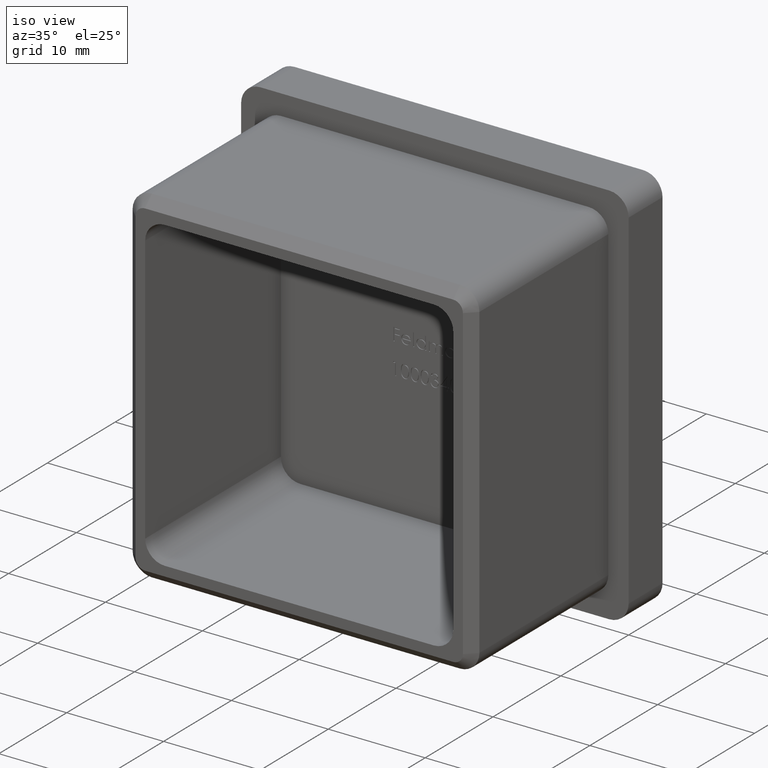
[diagram: clean part render]
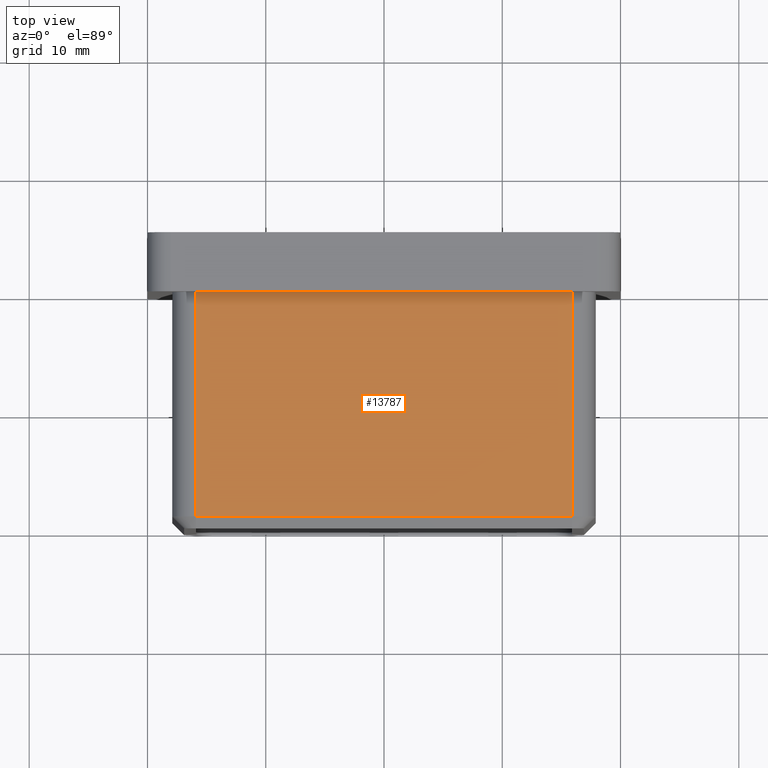
[diagram: tour spotlight — one face highlighted and labeled with its STEP entity id]
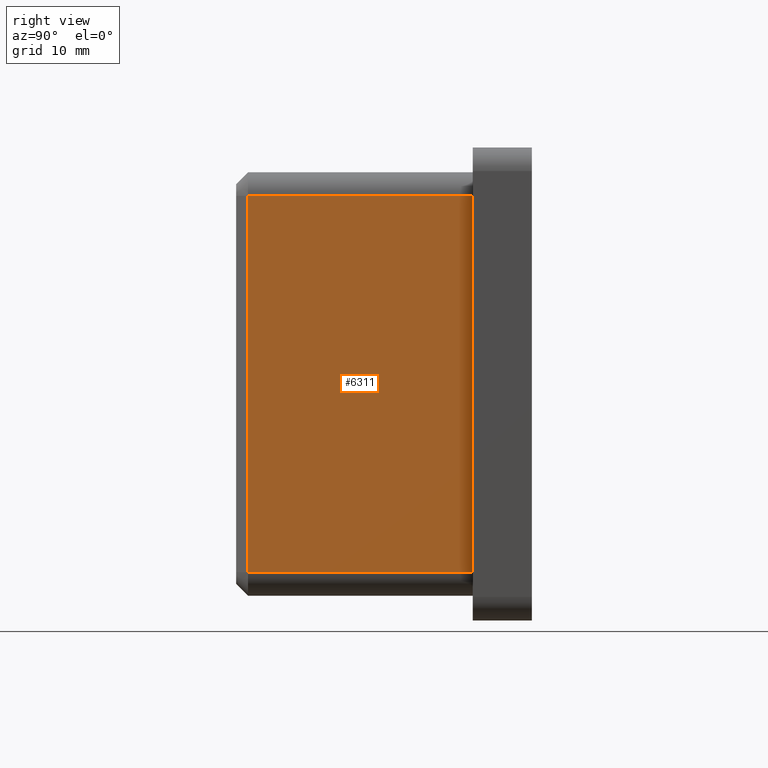
[diagram: tour spotlight — one face highlighted and labeled with its STEP entity id]
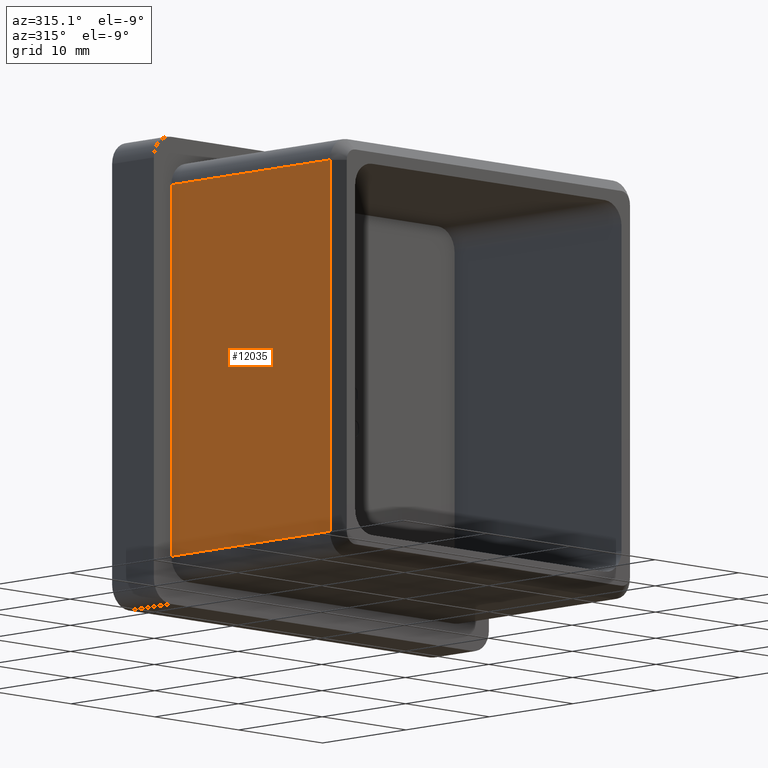
[diagram: tour spotlight — one face highlighted and labeled with its STEP entity id]
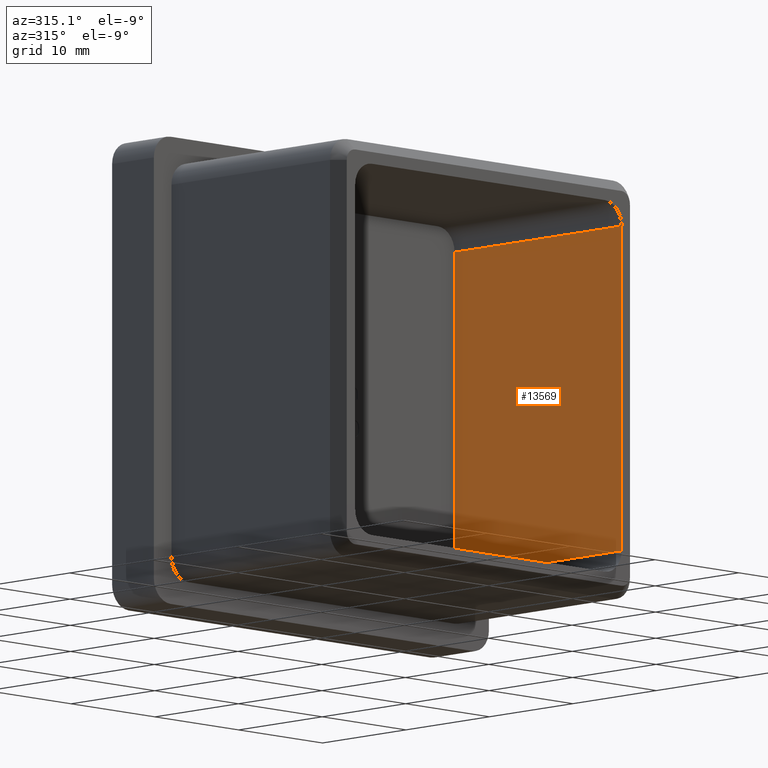
[diagram: tour spotlight — one face highlighted and labeled with its STEP entity id]
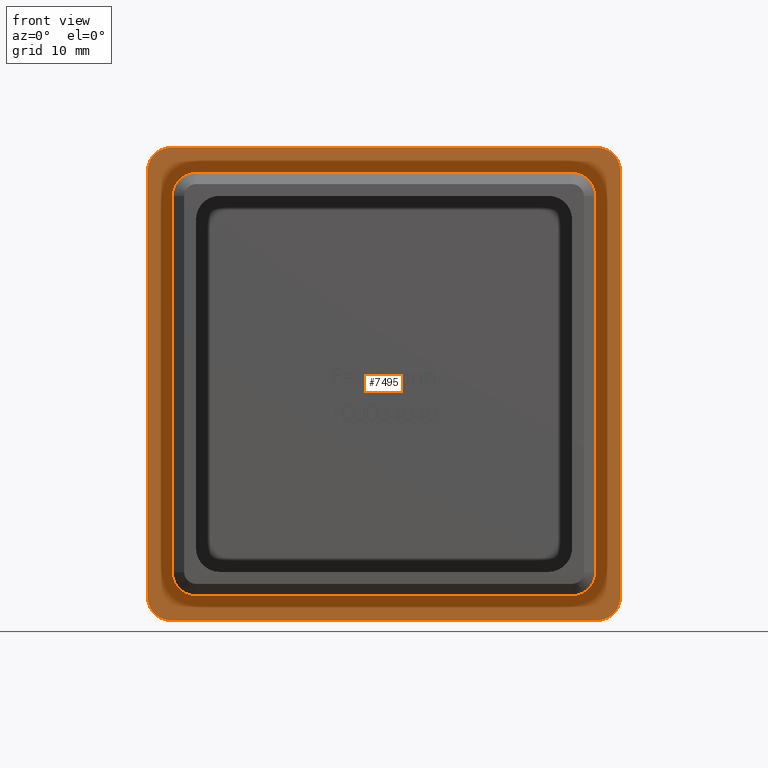
[diagram: tour spotlight — one face highlighted and labeled with its STEP entity id]
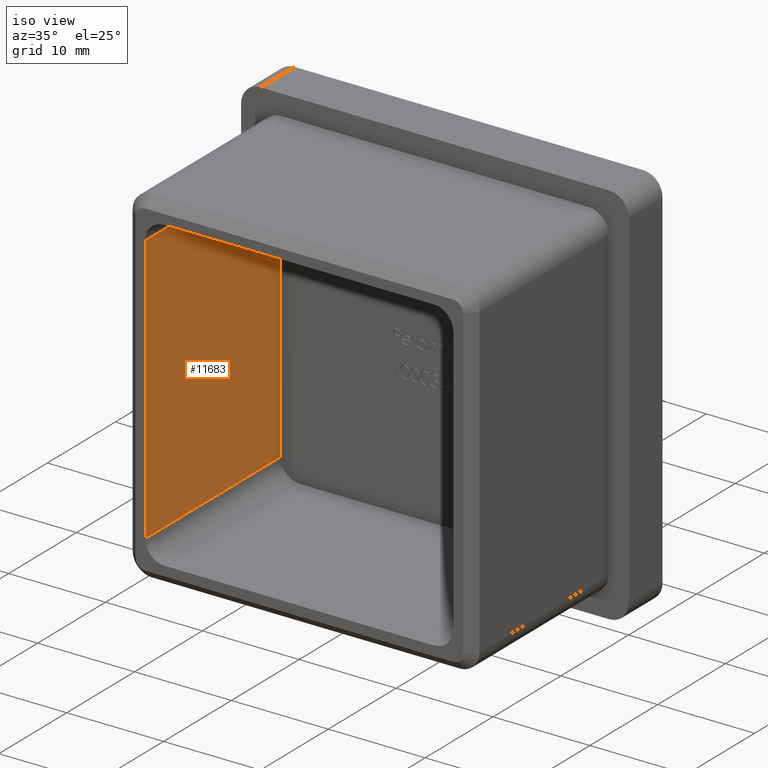
[diagram: tour spotlight — one face highlighted and labeled with its STEP entity id]
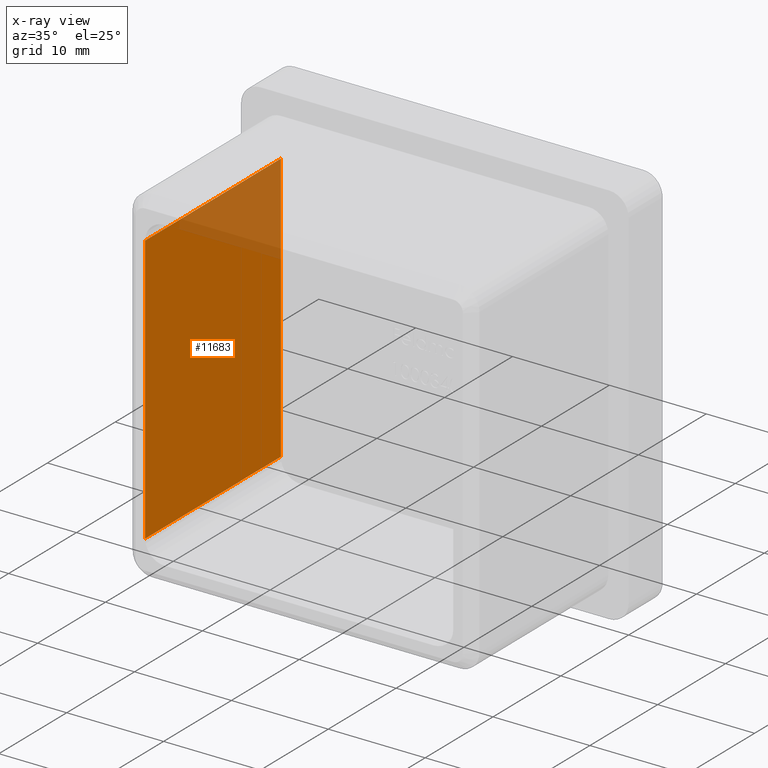
[diagram: x-ray of the same camera — body ghosted, this tour face saturated]
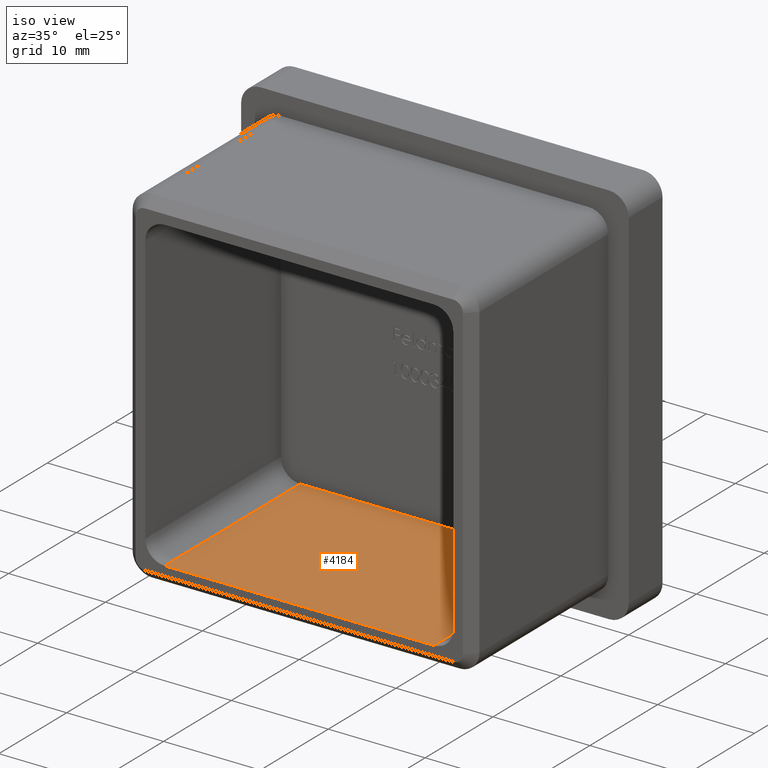
[diagram: tour spotlight — one face highlighted and labeled with its STEP entity id]
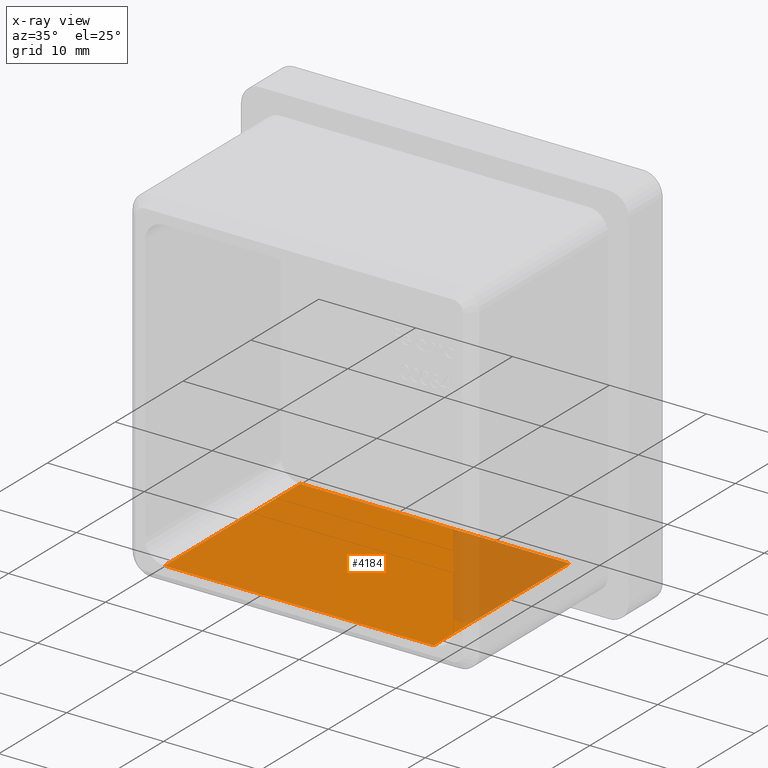
[diagram: x-ray of the same camera — body ghosted, this tour face saturated]
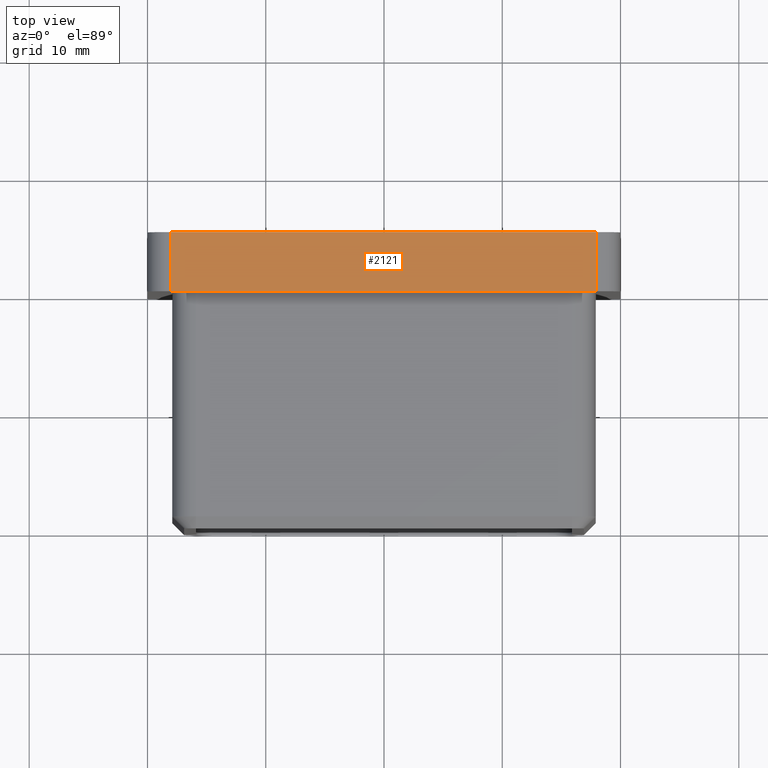
[diagram: tour spotlight — one face highlighted and labeled with its STEP entity id]
A machine part: a face-by-face anatomy tour. The part has 259 B-rep faces; the first image is the clean iso view, then the 8 largest visible faces are spotlighted one at a time (largest first), each with its STEP entity span.

Face 1 — top view, entity #13787. In plain terms, the highlighted planar face has unit normal (0, 0, -1).
Definition (entity closure, byte-faithful):
#278 = EDGE_LOOP ( 'NONE', ( #12720, #13172, #12821, #14351 ) ) ;
#1081 = VERTEX_POINT ( 'NONE', #6877 ) ;
#1082 = DIRECTION ( 'NONE',  ( 0.0000000000000000000, 0.0000000000000000000, -1.000000000000000000 ) ) ;
#1235 = CARTESIAN_POINT ( 'NONE',  ( 15.89999999999998400, 0.0000000000000000000, 17.89999999999999900 ) ) ;
#1703 = VECTOR ( 'NONE', #12383, 1000.000000000000000 ) ;
#1907 = DIRECTION ( 'NONE',  ( 0.0000000000000000000, 1.000000000000000000, 0.0000000000000000000 ) ) ;
#1947 = CARTESIAN_POINT ( 'NONE',  ( -15.89999999999999700, -20.00000000000000000, 17.89999999999999900 ) ) ;
#2086 = CARTESIAN_POINT ( 'NONE',  ( 15.89999999999998400, -18.99999999999998600, 17.89999999999999900 ) ) ;
#3651 = LINE ( 'NONE', #2086, #10489 ) ;
#3713 = EDGE_CURVE ( 'NONE', #10042, #13237, #9702, .T. ) ;
#4677 = LINE ( 'NONE', #1947, #1703 ) ;
#5025 = VECTOR ( 'NONE', #1907, 1000.000000000000000 ) ;
#5189 = CARTESIAN_POINT ( 'NONE',  ( -17.89999999999999900, 0.0000000000000000000, 17.89999999999999900 ) ) ;
#5533 = DIRECTION ( 'NONE',  ( 1.000000000000000000, 0.0000000000000000000, 0.0000000000000000000 ) ) ;
#6624 = EDGE_CURVE ( 'NONE', #1081, #10042, #14276, .T. ) ;
#6647 = EDGE_CURVE ( 'NONE', #13237, #13426, #4677, .T. ) ;
#6678 = DIRECTION ( 'NONE',  ( -1.000000000000000000, -0.0000000000000000000, -0.0000000000000000000 ) ) ;
#6877 = CARTESIAN_POINT ( 'NONE',  ( 15.89999999999999700, -18.99999999999998600, 17.89999999999999900 ) ) ;
#7542 = PLANE ( 'NONE',  #11648 ) ;
#7789 = CARTESIAN_POINT ( 'NONE',  ( -17.89999999999999900, -20.00000000000000000, 17.89999999999999900 ) ) ;
#7970 = CARTESIAN_POINT ( 'NONE',  ( -15.89999999999999700, 0.0000000000000000000, 17.89999999999999900 ) ) ;
#8910 = FACE_OUTER_BOUND ( 'NONE', #278, .T. ) ;
#8916 = DIRECTION ( 'NONE',  ( -1.000000000000000000, 0.0000000000000000000, -0.0000000000000000000 ) ) ;
#9702 = LINE ( 'NONE', #5189, #12671 ) ;
#10042 = VERTEX_POINT ( 'NONE', #1235 ) ;
#10489 = VECTOR ( 'NONE', #5533, 1000.000000000000000 ) ;
#11566 = CARTESIAN_POINT ( 'NONE',  ( -15.89999999999999700, -18.99999999999998600, 17.89999999999999900 ) ) ;
#11648 = AXIS2_PLACEMENT_3D ( 'NONE', #7789, #1082, #8916 ) ;
#12140 = CARTESIAN_POINT ( 'NONE',  ( 15.89999999999999700, -20.00000000000000000, 17.89999999999999900 ) ) ;
#12383 = DIRECTION ( 'NONE',  ( -0.0000000000000000000, -1.000000000000000000, -0.0000000000000000000 ) ) ;
#12671 = VECTOR ( 'NONE', #6678, 1000.000000000000000 ) ;
#12720 = ORIENTED_EDGE ( 'NONE', *, *, #6647, .T. ) ;
#12821 = ORIENTED_EDGE ( 'NONE', *, *, #6624, .T. ) ;
#13172 = ORIENTED_EDGE ( 'NONE', *, *, #13899, .T. ) ;
#13237 = VERTEX_POINT ( 'NONE', #7970 ) ;
#13426 = VERTEX_POINT ( 'NONE', #11566 ) ;
#13787 = ADVANCED_FACE ( 'NONE', ( #8910 ), #7542, .F. ) ;
#13899 = EDGE_CURVE ( 'NONE', #13426, #1081, #3651, .T. ) ;
#14276 = LINE ( 'NONE', #12140, #5025 ) ;
#14351 = ORIENTED_EDGE ( 'NONE', *, *, #3713, .T. ) ;

Face 2 — right view, entity #6311. In plain terms, the highlighted planar face has unit normal (-1, 0, -0).
Definition (entity closure, byte-faithful):
#3 = ORIENTED_EDGE ( 'NONE', *, *, #2335, .T. ) ;
#183 = DIRECTION ( 'NONE',  ( -0.0000000000000000000, 0.0000000000000000000, 1.000000000000000000 ) ) ;
#287 = DIRECTION ( 'NONE',  ( -0.0000000000000000000, -0.0000000000000000000, 1.000000000000000000 ) ) ;
#300 = EDGE_CURVE ( 'NONE', #13657, #5680, #11364, .T. ) ;
#335 = CARTESIAN_POINT ( 'NONE',  ( 17.89999999999999900, 0.0000000000000000000, 17.89999999999999900 ) ) ;
#1181 = DIRECTION ( 'NONE',  ( 0.0000000000000000000, 1.000000000000000000, 0.0000000000000000000 ) ) ;
#1197 = EDGE_CURVE ( 'NONE', #7612, #13657, #6884, .T. ) ;
#2312 = CARTESIAN_POINT ( 'NONE',  ( 17.89999999999999900, 0.0000000000000000000, -15.89999999999998400 ) ) ;
#2335 = EDGE_CURVE ( 'NONE', #5680, #2731, #14076, .T. ) ;
#2683 = LINE ( 'NONE', #335, #5313 ) ;
#2731 = VERTEX_POINT ( 'NONE', #2312 ) ;
#3453 = DIRECTION ( 'NONE',  ( -1.000000000000000000, 0.0000000000000000000, -0.0000000000000000000 ) ) ;
#3534 = DIRECTION ( 'NONE',  ( -0.0000000000000000000, -1.000000000000000000, -0.0000000000000000000 ) ) ;
#4021 = EDGE_CURVE ( 'NONE', #2731, #7612, #2683, .T. ) ;
#4549 = CARTESIAN_POINT ( 'NONE',  ( 17.89999999999999900, -20.00000000000000000, -15.89999999999999700 ) ) ;
#5253 = ORIENTED_EDGE ( 'NONE', *, *, #300, .T. ) ;
#5313 = VECTOR ( 'NONE', #287, 1000.000000000000000 ) ;
#5680 = VERTEX_POINT ( 'NONE', #13025 ) ;
#5906 = PLANE ( 'NONE',  #11083 ) ;
#5983 = CARTESIAN_POINT ( 'NONE',  ( 17.89999999999999900, -20.00000000000000000, 15.89999999999999700 ) ) ;
#6311 = ADVANCED_FACE ( 'NONE', ( #12963 ), #5906, .F. ) ;
#6884 = LINE ( 'NONE', #5983, #7404 ) ;
#6891 = CARTESIAN_POINT ( 'NONE',  ( 17.89999999999999900, -20.00000000000000000, 17.89999999999999900 ) ) ;
#7404 = VECTOR ( 'NONE', #3534, 1000.000000000000000 ) ;
#7612 = VERTEX_POINT ( 'NONE', #12650 ) ;
#8386 = VECTOR ( 'NONE', #12271, 1000.000000000000000 ) ;
#8709 = EDGE_LOOP ( 'NONE', ( #9338, #5253, #3, #13088 ) ) ;
#8723 = CARTESIAN_POINT ( 'NONE',  ( 17.89999999999999900, -18.99999999999998600, 15.89999999999999700 ) ) ;
#8914 = CARTESIAN_POINT ( 'NONE',  ( 17.89999999999999900, -18.99999999999998600, -15.89999999999998400 ) ) ;
#9338 = ORIENTED_EDGE ( 'NONE', *, *, #1197, .T. ) ;
#9900 = VECTOR ( 'NONE', #1181, 1000.000000000000000 ) ;
#11083 = AXIS2_PLACEMENT_3D ( 'NONE', #6891, #3453, #183 ) ;
#11364 = LINE ( 'NONE', #8914, #8386 ) ;
#12271 = DIRECTION ( 'NONE',  ( 0.0000000000000000000, 0.0000000000000000000, -1.000000000000000000 ) ) ;
#12650 = CARTESIAN_POINT ( 'NONE',  ( 17.89999999999999900, 0.0000000000000000000, 15.89999999999999700 ) ) ;
#12963 = FACE_OUTER_BOUND ( 'NONE', #8709, .T. ) ;
#13025 = CARTESIAN_POINT ( 'NONE',  ( 17.89999999999999900, -18.99999999999998600, -15.89999999999999700 ) ) ;
#13088 = ORIENTED_EDGE ( 'NONE', *, *, #4021, .T. ) ;
#13657 = VERTEX_POINT ( 'NONE', #8723 ) ;
#14076 = LINE ( 'NONE', #4549, #9900 ) ;

Face 3 — auxiliary view, entity #12035. In plain terms, the highlighted planar face has unit normal (1, 0, 0).
Definition (entity closure, byte-faithful):
#126 = PLANE ( 'NONE',  #4966 ) ;
#634 = EDGE_CURVE ( 'NONE', #5149, #2259, #7764, .T. ) ;
#1969 = LINE ( 'NONE', #11617, #13522 ) ;
#2259 = VERTEX_POINT ( 'NONE', #9642 ) ;
#2912 = EDGE_CURVE ( 'NONE', #4857, #10256, #9887, .T. ) ;
#3251 = VECTOR ( 'NONE', #5594, 1000.000000000000000 ) ;
#3583 = ORIENTED_EDGE ( 'NONE', *, *, #634, .T. ) ;
#3675 = CARTESIAN_POINT ( 'NONE',  ( -17.89999999999999900, -18.99999999999998600, -15.89999999999999700 ) ) ;
#4367 = CARTESIAN_POINT ( 'NONE',  ( -17.89999999999999900, -20.00000000000000000, -15.89999999999999700 ) ) ;
#4556 = EDGE_CURVE ( 'NONE', #2259, #4857, #1969, .T. ) ;
#4857 = VERTEX_POINT ( 'NONE', #11037 ) ;
#4900 = DIRECTION ( 'NONE',  ( -0.0000000000000000000, 1.000000000000000000, 0.0000000000000000000 ) ) ;
#4966 = AXIS2_PLACEMENT_3D ( 'NONE', #10249, #7957, #5848 ) ;
#4981 = VECTOR ( 'NONE', #9518, 1000.000000000000000 ) ;
#5149 = VERTEX_POINT ( 'NONE', #3675 ) ;
#5240 = EDGE_LOOP ( 'NONE', ( #7908, #3583, #9339, #9733 ) ) ;
#5594 = DIRECTION ( 'NONE',  ( -0.0000000000000000000, -1.000000000000000000, -0.0000000000000000000 ) ) ;
#5848 = DIRECTION ( 'NONE',  ( 0.0000000000000000000, 0.0000000000000000000, -1.000000000000000000 ) ) ;
#7109 = FACE_OUTER_BOUND ( 'NONE', #5240, .T. ) ;
#7764 = LINE ( 'NONE', #10410, #11606 ) ;
#7908 = ORIENTED_EDGE ( 'NONE', *, *, #11409, .T. ) ;
#7957 = DIRECTION ( 'NONE',  ( 1.000000000000000000, 0.0000000000000000000, 0.0000000000000000000 ) ) ;
#8409 = CARTESIAN_POINT ( 'NONE',  ( -17.89999999999999900, 0.0000000000000000000, 17.89999999999999900 ) ) ;
#8426 = CARTESIAN_POINT ( 'NONE',  ( -17.89999999999999900, 0.0000000000000000000, -15.89999999999998400 ) ) ;
#9339 = ORIENTED_EDGE ( 'NONE', *, *, #4556, .T. ) ;
#9383 = LINE ( 'NONE', #4367, #3251 ) ;
#9431 = DIRECTION ( 'NONE',  ( 0.0000000000000000000, 0.0000000000000000000, 1.000000000000000000 ) ) ;
#9518 = DIRECTION ( 'NONE',  ( 0.0000000000000000000, -0.0000000000000000000, -1.000000000000000000 ) ) ;
#9642 = CARTESIAN_POINT ( 'NONE',  ( -17.89999999999999900, -18.99999999999998600, 15.89999999999999700 ) ) ;
#9733 = ORIENTED_EDGE ( 'NONE', *, *, #2912, .T. ) ;
#9887 = LINE ( 'NONE', #8409, #4981 ) ;
#10249 = CARTESIAN_POINT ( 'NONE',  ( -17.89999999999999900, -20.00000000000000000, 17.89999999999999900 ) ) ;
#10256 = VERTEX_POINT ( 'NONE', #8426 ) ;
#10410 = CARTESIAN_POINT ( 'NONE',  ( -17.89999999999999900, -18.99999999999998600, 15.89999999999999700 ) ) ;
#11037 = CARTESIAN_POINT ( 'NONE',  ( -17.89999999999999900, 0.0000000000000000000, 15.89999999999999700 ) ) ;
#11409 = EDGE_CURVE ( 'NONE', #10256, #5149, #9383, .T. ) ;
#11606 = VECTOR ( 'NONE', #9431, 1000.000000000000000 ) ;
#11617 = CARTESIAN_POINT ( 'NONE',  ( -17.89999999999999900, -20.00000000000000000, 15.89999999999999700 ) ) ;
#12035 = ADVANCED_FACE ( 'NONE', ( #7109 ), #126, .F. ) ;
#13522 = VECTOR ( 'NONE', #4900, 1000.000000000000000 ) ;

Face 4 — auxiliary view, entity #13569. In plain terms, the highlighted planar face has unit normal (-1, 0, 0).
Definition (entity closure, byte-faithful):
#100 = VECTOR ( 'NONE', #11257, 1000.000000000000000 ) ;
#470 = VERTEX_POINT ( 'NONE', #628 ) ;
#628 = CARTESIAN_POINT ( 'NONE',  ( 15.89999999999999700, -20.00000000000000000, -13.89999999999999900 ) ) ;
#652 = DIRECTION ( 'NONE',  ( -1.000000000000000000, 0.0000000000000000000, 1.091021054073463500E-016 ) ) ;
#1345 = LINE ( 'NONE', #5461, #4482 ) ;
#1497 = CARTESIAN_POINT ( 'NONE',  ( 15.90000000000000000, 0.0000000000000000000, 13.90000000000000000 ) ) ;
#1547 = FACE_OUTER_BOUND ( 'NONE', #13655, .T. ) ;
#1639 = CARTESIAN_POINT ( 'NONE',  ( 15.89999999999999700, -20.00000000000000000, -13.90000000000000000 ) ) ;
#1672 = VECTOR ( 'NONE', #1870, 1000.000000000000000 ) ;
#1705 = EDGE_CURVE ( 'NONE', #13284, #470, #11085, .T. ) ;
#1833 = ORIENTED_EDGE ( 'NONE', *, *, #1705, .T. ) ;
#1870 = DIRECTION ( 'NONE',  ( 1.091021054073463500E-016, -0.0000000000000000000, 1.000000000000000000 ) ) ;
#1922 = EDGE_CURVE ( 'NONE', #13284, #14282, #9555, .T. ) ;
#2117 = VECTOR ( 'NONE', #6158, 1000.000000000000000 ) ;
#2362 = CARTESIAN_POINT ( 'NONE',  ( 15.89999999999999700, 0.0000000000000000000, -13.89999999999999900 ) ) ;
#2652 = CARTESIAN_POINT ( 'NONE',  ( 15.90000000000000000, 0.0000000000000000000, 13.90000000000000000 ) ) ;
#2952 = EDGE_CURVE ( 'NONE', #13608, #14282, #10610, .T. ) ;
#3069 = CARTESIAN_POINT ( 'NONE',  ( 15.90000000000000000, -20.00000000000000000, 13.90000000000000000 ) ) ;
#3349 = DIRECTION ( 'NONE',  ( 1.091021054073463500E-016, -0.0000000000000000000, 1.000000000000000000 ) ) ;
#4482 = VECTOR ( 'NONE', #3349, 1000.000000000000000 ) ;
#5137 = DIRECTION ( 'NONE',  ( 1.091021054073463500E-016, 0.0000000000000000000, 1.000000000000000000 ) ) ;
#5151 = CARTESIAN_POINT ( 'NONE',  ( 15.90000000000000000, 0.0000000000000000000, 15.90000000000000000 ) ) ;
#5461 = CARTESIAN_POINT ( 'NONE',  ( 15.90000000000000000, -20.00000000000000000, 15.90000000000000000 ) ) ;
#5804 = ORIENTED_EDGE ( 'NONE', *, *, #11283, .T. ) ;
#6158 = DIRECTION ( 'NONE',  ( -0.0000000000000000000, -1.000000000000000000, -0.0000000000000000000 ) ) ;
#9537 = ORIENTED_EDGE ( 'NONE', *, *, #2952, .T. ) ;
#9555 = LINE ( 'NONE', #5151, #1672 ) ;
#10610 = LINE ( 'NONE', #2652, #100 ) ;
#11085 = LINE ( 'NONE', #1639, #2117 ) ;
#11257 = DIRECTION ( 'NONE',  ( 0.0000000000000000000, 1.000000000000000000, 0.0000000000000000000 ) ) ;
#11283 = EDGE_CURVE ( 'NONE', #470, #13608, #1345, .T. ) ;
#11320 = ORIENTED_EDGE ( 'NONE', *, *, #1922, .F. ) ;
#11800 = CARTESIAN_POINT ( 'NONE',  ( 15.90000000000000000, -20.00000000000000000, 15.90000000000000000 ) ) ;
#11847 = PLANE ( 'NONE',  #13594 ) ;
#13284 = VERTEX_POINT ( 'NONE', #2362 ) ;
#13569 = ADVANCED_FACE ( 'NONE', ( #1547 ), #11847, .T. ) ;
#13594 = AXIS2_PLACEMENT_3D ( 'NONE', #11800, #652, #5137 ) ;
#13608 = VERTEX_POINT ( 'NONE', #3069 ) ;
#13655 = EDGE_LOOP ( 'NONE', ( #11320, #1833, #5804, #9537 ) ) ;
#14282 = VERTEX_POINT ( 'NONE', #1497 ) ;

Face 5 — front view, entity #7495. In plain terms, the highlighted planar face has unit normal (0, 1, 0).
Definition (entity closure, byte-faithful):
#213 = DIRECTION ( 'NONE',  ( -0.0000000000000000000, -1.000000000000000000, -0.0000000000000000000 ) ) ;
#258 = CARTESIAN_POINT ( 'NONE',  ( -19.99999999999999300, 0.0000000000000000000, 20.00000000000000000 ) ) ;
#287 = DIRECTION ( 'NONE',  ( -0.0000000000000000000, -0.0000000000000000000, 1.000000000000000000 ) ) ;
#335 = CARTESIAN_POINT ( 'NONE',  ( 17.89999999999999900, 0.0000000000000000000, 17.89999999999999900 ) ) ;
#433 = CARTESIAN_POINT ( 'NONE',  ( 0.0000000000000000000, 0.0000000000000000000, 0.0000000000000000000 ) ) ;
#530 = CARTESIAN_POINT ( 'NONE',  ( 15.89999999999998400, 0.0000000000000000000, -17.89999999999999900 ) ) ;
#534 = VERTEX_POINT ( 'NONE', #11830 ) ;
#567 = VECTOR ( 'NONE', #4516, 1000.000000000000000 ) ;
#591 = CARTESIAN_POINT ( 'NONE',  ( 15.89999999999999700, 0.0000000000000000000, -15.89999999999999700 ) ) ;
#661 = ORIENTED_EDGE ( 'NONE', *, *, #4021, .F. ) ;
#707 = CARTESIAN_POINT ( 'NONE',  ( -15.89999999999999700, 0.0000000000000000000, -17.89999999999999900 ) ) ;
#915 = DIRECTION ( 'NONE',  ( 0.0000000000000000000, 1.000000000000000000, 0.0000000000000000000 ) ) ;
#996 = EDGE_LOOP ( 'NONE', ( #4811, #7583, #3006, #11451, #9241, #5613, #5521, #12932 ) ) ;
#1066 = CARTESIAN_POINT ( 'NONE',  ( -15.89999999999999700, 0.0000000000000000000, 15.89999999999999700 ) ) ;
#1084 = EDGE_CURVE ( 'NONE', #2330, #2271, #8798, .T. ) ;
#1174 = EDGE_CURVE ( 'NONE', #2330, #9717, #12468, .T. ) ;
#1199 = EDGE_CURVE ( 'NONE', #534, #9717, #14188, .T. ) ;
#1200 = EDGE_LOOP ( 'NONE', ( #661, #1737, #13458, #10148, #6559, #4944, #3926, #2053 ) ) ;
#1235 = CARTESIAN_POINT ( 'NONE',  ( 15.89999999999998400, 0.0000000000000000000, 17.89999999999999900 ) ) ;
#1388 = DIRECTION ( 'NONE',  ( 1.000000000000000000, 0.0000000000000000000, 0.0000000000000000000 ) ) ;
#1430 = CARTESIAN_POINT ( 'NONE',  ( -17.99999999999999600, 0.0000000000000000000, 18.00000000000000400 ) ) ;
#1458 = CARTESIAN_POINT ( 'NONE',  ( -19.99999999999999300, 0.0000000000000000000, 18.00000000000000700 ) ) ;
#1508 = CIRCLE ( 'NONE', #2986, 2.000000000000001800 ) ;
#1552 = CARTESIAN_POINT ( 'NONE',  ( -18.00000000000000400, 0.0000000000000000000, -20.00000000000000000 ) ) ;
#1562 = DIRECTION ( 'NONE',  ( 0.0000000000000000000, 1.000000000000000000, 0.0000000000000000000 ) ) ;
#1637 = CARTESIAN_POINT ( 'NONE',  ( 18.00000000000001400, 0.0000000000000000000, 20.00000000000000000 ) ) ;
#1737 = ORIENTED_EDGE ( 'NONE', *, *, #3826, .T. ) ;
#1738 = DIRECTION ( 'NONE',  ( 1.000000000000000000, 0.0000000000000000000, 0.0000000000000000000 ) ) ;
#1753 = VERTEX_POINT ( 'NONE', #1552 ) ;
#2017 = CIRCLE ( 'NONE', #9396, 2.000000000000001800 ) ;
#2037 = DIRECTION ( 'NONE',  ( 1.734723475976807100E-016, 0.0000000000000000000, 1.000000000000000000 ) ) ;
#2053 = ORIENTED_EDGE ( 'NONE', *, *, #11471, .T. ) ;
#2067 = AXIS2_PLACEMENT_3D ( 'NONE', #10632, #14058, #12931 ) ;
#2271 = VERTEX_POINT ( 'NONE', #9783 ) ;
#2282 = EDGE_CURVE ( 'NONE', #3550, #6066, #7114, .T. ) ;
#2312 = CARTESIAN_POINT ( 'NONE',  ( 17.89999999999999900, 0.0000000000000000000, -15.89999999999998400 ) ) ;
#2330 = VERTEX_POINT ( 'NONE', #4258 ) ;
#2533 = VECTOR ( 'NONE', #2037, 1000.000000000000000 ) ;
#2647 = EDGE_CURVE ( 'NONE', #4857, #13237, #7284, .T. ) ;
#2683 = LINE ( 'NONE', #335, #5313 ) ;
#2715 = DIRECTION ( 'NONE',  ( 0.0000000000000000000, -0.0000000000000000000, 1.000000000000000000 ) ) ;
#2731 = VERTEX_POINT ( 'NONE', #2312 ) ;
#2827 = LINE ( 'NONE', #11588, #7575 ) ;
#2870 = CIRCLE ( 'NONE', #12636, 2.000000000000000000 ) ;
#2912 = EDGE_CURVE ( 'NONE', #4857, #10256, #9887, .T. ) ;
#2986 = AXIS2_PLACEMENT_3D ( 'NONE', #1430, #13879, #4936 ) ;
#3006 = ORIENTED_EDGE ( 'NONE', *, *, #1084, .F. ) ;
#3032 = CIRCLE ( 'NONE', #6375, 2.000000000000000000 ) ;
#3077 = FACE_OUTER_BOUND ( 'NONE', #996, .T. ) ;
#3289 = EDGE_CURVE ( 'NONE', #8749, #10256, #2870, .T. ) ;
#3486 = DIRECTION ( 'NONE',  ( 0.0000000000000000000, 1.000000000000000000, 0.0000000000000000000 ) ) ;
#3550 = VERTEX_POINT ( 'NONE', #5047 ) ;
#3713 = EDGE_CURVE ( 'NONE', #10042, #13237, #9702, .T. ) ;
#3826 = EDGE_CURVE ( 'NONE', #2731, #4071, #3032, .T. ) ;
#3926 = ORIENTED_EDGE ( 'NONE', *, *, #3713, .F. ) ;
#4021 = EDGE_CURVE ( 'NONE', #2731, #7612, #2683, .T. ) ;
#4071 = VERTEX_POINT ( 'NONE', #530 ) ;
#4258 = CARTESIAN_POINT ( 'NONE',  ( 20.00000000000000700, 0.0000000000000000000, 18.00000000000000700 ) ) ;
#4516 = DIRECTION ( 'NONE',  ( -1.734723475976807100E-016, -0.0000000000000000000, -1.000000000000000000 ) ) ;
#4608 = DIRECTION ( 'NONE',  ( 0.0000000000000000000, 0.0000000000000000000, 1.000000000000000000 ) ) ;
#4811 = ORIENTED_EDGE ( 'NONE', *, *, #6839, .F. ) ;
#4857 = VERTEX_POINT ( 'NONE', #11037 ) ;
#4936 = DIRECTION ( 'NONE',  ( 0.0000000000000000000, 0.0000000000000000000, 1.000000000000000000 ) ) ;
#4944 = ORIENTED_EDGE ( 'NONE', *, *, #2647, .T. ) ;
#4981 = VECTOR ( 'NONE', #9518, 1000.000000000000000 ) ;
#5017 = AXIS2_PLACEMENT_3D ( 'NONE', #8095, #213, #12573 ) ;
#5047 = CARTESIAN_POINT ( 'NONE',  ( -20.00000000000000000, 0.0000000000000000000, -18.00000000000000400 ) ) ;
#5189 = CARTESIAN_POINT ( 'NONE',  ( -17.89999999999999900, 0.0000000000000000000, 17.89999999999999900 ) ) ;
#5313 = VECTOR ( 'NONE', #287, 1000.000000000000000 ) ;
#5449 = AXIS2_PLACEMENT_3D ( 'NONE', #433, #1562, #2715 ) ;
#5521 = ORIENTED_EDGE ( 'NONE', *, *, #2282, .F. ) ;
#5613 = ORIENTED_EDGE ( 'NONE', *, *, #11641, .T. ) ;
#5690 = CARTESIAN_POINT ( 'NONE',  ( 20.00000000000000000, 0.0000000000000000000, -20.00000000000000000 ) ) ;
#5839 = CARTESIAN_POINT ( 'NONE',  ( -20.00000000000000000, 0.0000000000000000000, -20.00000000000000000 ) ) ;
#6066 = VERTEX_POINT ( 'NONE', #1458 ) ;
#6151 = EDGE_CURVE ( 'NONE', #8749, #4071, #2827, .T. ) ;
#6181 = VECTOR ( 'NONE', #1388, 1000.000000000000000 ) ;
#6375 = AXIS2_PLACEMENT_3D ( 'NONE', #591, #11838, #12936 ) ;
#6559 = ORIENTED_EDGE ( 'NONE', *, *, #2912, .F. ) ;
#6678 = DIRECTION ( 'NONE',  ( -1.000000000000000000, -0.0000000000000000000, -0.0000000000000000000 ) ) ;
#6839 = EDGE_CURVE ( 'NONE', #10675, #1753, #13945, .T. ) ;
#7114 = LINE ( 'NONE', #14252, #2533 ) ;
#7284 = CIRCLE ( 'NONE', #7889, 2.000000000000001800 ) ;
#7320 = CIRCLE ( 'NONE', #2067, 2.000000000000001800 ) ;
#7495 = ADVANCED_FACE ( 'NONE', ( #3077, #7837 ), #8368, .F. ) ;
#7575 = VECTOR ( 'NONE', #1738, 1000.000000000000000 ) ;
#7583 = ORIENTED_EDGE ( 'NONE', *, *, #10571, .T. ) ;
#7612 = VERTEX_POINT ( 'NONE', #12650 ) ;
#7837 = FACE_BOUND ( 'NONE', #1200, .T. ) ;
#7889 = AXIS2_PLACEMENT_3D ( 'NONE', #1066, #13418, #7973 ) ;
#7947 = CARTESIAN_POINT ( 'NONE',  ( 15.89999999999999700, 0.0000000000000000000, 15.89999999999999700 ) ) ;
#7970 = CARTESIAN_POINT ( 'NONE',  ( -15.89999999999999700, 0.0000000000000000000, 17.89999999999999900 ) ) ;
#7973 = DIRECTION ( 'NONE',  ( 0.0000000000000000000, 0.0000000000000000000, 1.000000000000000000 ) ) ;
#8095 = CARTESIAN_POINT ( 'NONE',  ( 18.00000000000001100, 0.0000000000000000000, 18.00000000000000700 ) ) ;
#8216 = DIRECTION ( 'NONE',  ( 0.0000000000000000000, 0.0000000000000000000, 1.000000000000000000 ) ) ;
#8368 = PLANE ( 'NONE',  #5449 ) ;
#8409 = CARTESIAN_POINT ( 'NONE',  ( -17.89999999999999900, 0.0000000000000000000, 17.89999999999999900 ) ) ;
#8426 = CARTESIAN_POINT ( 'NONE',  ( -17.89999999999999900, 0.0000000000000000000, -15.89999999999998400 ) ) ;
#8749 = VERTEX_POINT ( 'NONE', #707 ) ;
#8798 = LINE ( 'NONE', #5690, #567 ) ;
#8838 = DIRECTION ( 'NONE',  ( 0.0000000000000000000, 0.0000000000000000000, 1.000000000000000000 ) ) ;
#9241 = ORIENTED_EDGE ( 'NONE', *, *, #1199, .F. ) ;
#9274 = CARTESIAN_POINT ( 'NONE',  ( 18.00000000000000700, 0.0000000000000000000, -18.00000000000000400 ) ) ;
#9396 = AXIS2_PLACEMENT_3D ( 'NONE', #9274, #13798, #8216 ) ;
#9518 = DIRECTION ( 'NONE',  ( 0.0000000000000000000, -0.0000000000000000000, -1.000000000000000000 ) ) ;
#9605 = CARTESIAN_POINT ( 'NONE',  ( 18.00000000000000700, 0.0000000000000000000, -20.00000000000000000 ) ) ;
#9702 = LINE ( 'NONE', #5189, #12671 ) ;
#9717 = VERTEX_POINT ( 'NONE', #1637 ) ;
#9783 = CARTESIAN_POINT ( 'NONE',  ( 20.00000000000000000, 0.0000000000000000000, -18.00000000000000400 ) ) ;
#9887 = LINE ( 'NONE', #8409, #4981 ) ;
#10042 = VERTEX_POINT ( 'NONE', #1235 ) ;
#10148 = ORIENTED_EDGE ( 'NONE', *, *, #3289, .T. ) ;
#10168 = EDGE_CURVE ( 'NONE', #3550, #1753, #7320, .T. ) ;
#10256 = VERTEX_POINT ( 'NONE', #8426 ) ;
#10571 = EDGE_CURVE ( 'NONE', #10675, #2271, #2017, .T. ) ;
#10632 = CARTESIAN_POINT ( 'NONE',  ( -18.00000000000000400, 0.0000000000000000000, -18.00000000000000400 ) ) ;
#10675 = VERTEX_POINT ( 'NONE', #9605 ) ;
#10800 = CIRCLE ( 'NONE', #10994, 2.000000000000001800 ) ;
#10994 = AXIS2_PLACEMENT_3D ( 'NONE', #7947, #3486, #4608 ) ;
#11001 = VECTOR ( 'NONE', #12572, 1000.000000000000000 ) ;
#11037 = CARTESIAN_POINT ( 'NONE',  ( -17.89999999999999900, 0.0000000000000000000, 15.89999999999999700 ) ) ;
#11451 = ORIENTED_EDGE ( 'NONE', *, *, #1174, .T. ) ;
#11471 = EDGE_CURVE ( 'NONE', #10042, #7612, #10800, .T. ) ;
#11588 = CARTESIAN_POINT ( 'NONE',  ( -17.89999999999999900, -0.0000000000000000000, -17.89999999999999900 ) ) ;
#11641 = EDGE_CURVE ( 'NONE', #534, #6066, #1508, .T. ) ;
#11830 = CARTESIAN_POINT ( 'NONE',  ( -17.99999999999999600, 0.0000000000000000000, 20.00000000000000000 ) ) ;
#11838 = DIRECTION ( 'NONE',  ( 0.0000000000000000000, 1.000000000000000000, 0.0000000000000000000 ) ) ;
#12468 = CIRCLE ( 'NONE', #5017, 1.999999999999998200 ) ;
#12572 = DIRECTION ( 'NONE',  ( -1.000000000000000000, -0.0000000000000000000, -0.0000000000000000000 ) ) ;
#12573 = DIRECTION ( 'NONE',  ( 0.0000000000000000000, 0.0000000000000000000, 1.000000000000000000 ) ) ;
#12636 = AXIS2_PLACEMENT_3D ( 'NONE', #13162, #915, #8838 ) ;
#12650 = CARTESIAN_POINT ( 'NONE',  ( 17.89999999999999900, 0.0000000000000000000, 15.89999999999999700 ) ) ;
#12671 = VECTOR ( 'NONE', #6678, 1000.000000000000000 ) ;
#12931 = DIRECTION ( 'NONE',  ( 0.0000000000000000000, 0.0000000000000000000, 1.000000000000000000 ) ) ;
#12932 = ORIENTED_EDGE ( 'NONE', *, *, #10168, .T. ) ;
#12936 = DIRECTION ( 'NONE',  ( 0.0000000000000000000, 0.0000000000000000000, 1.000000000000000000 ) ) ;
#13162 = CARTESIAN_POINT ( 'NONE',  ( -15.89999999999999700, 0.0000000000000000000, -15.89999999999999700 ) ) ;
#13237 = VERTEX_POINT ( 'NONE', #7970 ) ;
#13418 = DIRECTION ( 'NONE',  ( 0.0000000000000000000, 1.000000000000000000, 0.0000000000000000000 ) ) ;
#13458 = ORIENTED_EDGE ( 'NONE', *, *, #6151, .F. ) ;
#13798 = DIRECTION ( 'NONE',  ( -0.0000000000000000000, -1.000000000000000000, -0.0000000000000000000 ) ) ;
#13879 = DIRECTION ( 'NONE',  ( -0.0000000000000000000, -1.000000000000000000, -0.0000000000000000000 ) ) ;
#13945 = LINE ( 'NONE', #5839, #11001 ) ;
#14058 = DIRECTION ( 'NONE',  ( -0.0000000000000000000, -1.000000000000000000, -0.0000000000000000000 ) ) ;
#14188 = LINE ( 'NONE', #258, #6181 ) ;
#14252 = CARTESIAN_POINT ( 'NONE',  ( -20.00000000000000000, 0.0000000000000000000, -20.00000000000000000 ) ) ;

Face 6 — iso view, entity #11683. An x-ray twin of the same camera follows (body ghosted, this face saturated) — the face is partly hidden behind the body. In plain terms, the highlighted planar face has unit normal (1, 0, 0).
Definition (entity closure, byte-faithful):
#410 = CARTESIAN_POINT ( 'NONE',  ( -15.90000000000000000, 0.0000000000000000000, 13.90000000000000000 ) ) ;
#455 = FACE_OUTER_BOUND ( 'NONE', #11920, .T. ) ;
#776 = LINE ( 'NONE', #2504, #9358 ) ;
#2504 = CARTESIAN_POINT ( 'NONE',  ( -15.90000000000000000, 0.0000000000000000000, 15.90000000000000000 ) ) ;
#2982 = VERTEX_POINT ( 'NONE', #11232 ) ;
#3326 = EDGE_CURVE ( 'NONE', #2982, #14430, #10775, .T. ) ;
#3397 = EDGE_CURVE ( 'NONE', #10556, #14430, #776, .T. ) ;
#3987 = CARTESIAN_POINT ( 'NONE',  ( -15.90000000000000000, -20.00000000000000000, 13.90000000000000000 ) ) ;
#4240 = CARTESIAN_POINT ( 'NONE',  ( -15.90000000000000000, 0.0000000000000000000, -13.89999999999999900 ) ) ;
#4823 = EDGE_CURVE ( 'NONE', #10556, #10302, #5300, .T. ) ;
#5130 = CARTESIAN_POINT ( 'NONE',  ( -15.90000000000000000, -20.00000000000000000, 15.90000000000000000 ) ) ;
#5176 = PLANE ( 'NONE',  #6489 ) ;
#5300 = LINE ( 'NONE', #3987, #7086 ) ;
#6384 = CARTESIAN_POINT ( 'NONE',  ( -15.90000000000000000, 0.0000000000000000000, -13.89999999999999900 ) ) ;
#6489 = AXIS2_PLACEMENT_3D ( 'NONE', #5130, #9591, #12937 ) ;
#7086 = VECTOR ( 'NONE', #9608, 1000.000000000000000 ) ;
#7861 = DIRECTION ( 'NONE',  ( 0.0000000000000000000, -0.0000000000000000000, -1.000000000000000000 ) ) ;
#8183 = VECTOR ( 'NONE', #7861, 1000.000000000000000 ) ;
#8204 = EDGE_CURVE ( 'NONE', #10302, #2982, #13032, .T. ) ;
#8695 = ORIENTED_EDGE ( 'NONE', *, *, #3397, .F. ) ;
#8708 = CARTESIAN_POINT ( 'NONE',  ( -15.90000000000000000, -20.00000000000000000, 13.90000000000000000 ) ) ;
#9313 = DIRECTION ( 'NONE',  ( 0.0000000000000000000, -0.0000000000000000000, -1.000000000000000000 ) ) ;
#9358 = VECTOR ( 'NONE', #9313, 1000.000000000000000 ) ;
#9591 = DIRECTION ( 'NONE',  ( 1.000000000000000000, 0.0000000000000000000, 0.0000000000000000000 ) ) ;
#9608 = DIRECTION ( 'NONE',  ( -0.0000000000000000000, -1.000000000000000000, 0.0000000000000000000 ) ) ;
#10302 = VERTEX_POINT ( 'NONE', #8708 ) ;
#10556 = VERTEX_POINT ( 'NONE', #410 ) ;
#10775 = LINE ( 'NONE', #4240, #14062 ) ;
#11232 = CARTESIAN_POINT ( 'NONE',  ( -15.90000000000000000, -20.00000000000000000, -13.89999999999999900 ) ) ;
#11677 = ORIENTED_EDGE ( 'NONE', *, *, #3326, .T. ) ;
#11683 = ADVANCED_FACE ( 'NONE', ( #455 ), #5176, .T. ) ;
#11920 = EDGE_LOOP ( 'NONE', ( #8695, #12190, #13011, #11677 ) ) ;
#12190 = ORIENTED_EDGE ( 'NONE', *, *, #4823, .T. ) ;
#12937 = DIRECTION ( 'NONE',  ( 0.0000000000000000000, 0.0000000000000000000, -1.000000000000000000 ) ) ;
#13011 = ORIENTED_EDGE ( 'NONE', *, *, #8204, .T. ) ;
#13032 = LINE ( 'NONE', #13403, #8183 ) ;
#13403 = CARTESIAN_POINT ( 'NONE',  ( -15.90000000000000000, -20.00000000000000000, 15.90000000000000000 ) ) ;
#14062 = VECTOR ( 'NONE', #14479, 1000.000000000000000 ) ;
#14430 = VERTEX_POINT ( 'NONE', #6384 ) ;
#14479 = DIRECTION ( 'NONE',  ( 0.0000000000000000000, 1.000000000000000000, -0.0000000000000000000 ) ) ;

Face 7 — iso view, entity #4184. An x-ray twin of the same camera follows (body ghosted, this face saturated) — the face is partly hidden behind the body. In plain terms, the highlighted planar face has unit normal (0, 0, 1).
Definition (entity closure, byte-faithful):
#178 = CARTESIAN_POINT ( 'NONE',  ( -13.90000000000000000, -20.00000000000000000, -15.89999999999999700 ) ) ;
#299 = DIRECTION ( 'NONE',  ( -0.0000000000000000000, -1.000000000000000000, 0.0000000000000000000 ) ) ;
#610 = VERTEX_POINT ( 'NONE', #3796 ) ;
#863 = CARTESIAN_POINT ( 'NONE',  ( -15.90000000000000000, -20.00000000000000000, -15.89999999999999700 ) ) ;
#1007 = DIRECTION ( 'NONE',  ( 1.000000000000000000, 0.0000000000000000000, -1.091021054073463800E-016 ) ) ;
#1305 = DIRECTION ( 'NONE',  ( 1.000000000000000000, 0.0000000000000000000, -1.091021054073463800E-016 ) ) ;
#1310 = CARTESIAN_POINT ( 'NONE',  ( 13.89999999999999500, -20.00000000000000000, -15.90000000000000000 ) ) ;
#1450 = CARTESIAN_POINT ( 'NONE',  ( -15.90000000000000000, -20.00000000000000000, -15.89999999999999700 ) ) ;
#1529 = ORIENTED_EDGE ( 'NONE', *, *, #4620, .T. ) ;
#1630 = VECTOR ( 'NONE', #14424, 1000.000000000000000 ) ;
#2220 = VERTEX_POINT ( 'NONE', #5377 ) ;
#3094 = DIRECTION ( 'NONE',  ( 1.091021054073463800E-016, 0.0000000000000000000, 1.000000000000000000 ) ) ;
#3752 = ORIENTED_EDGE ( 'NONE', *, *, #10155, .T. ) ;
#3796 = CARTESIAN_POINT ( 'NONE',  ( -13.90000000000000000, 0.0000000000000000000, -15.89999999999999700 ) ) ;
#3808 = VECTOR ( 'NONE', #299, 1000.000000000000000 ) ;
#3981 = LINE ( 'NONE', #12705, #3808 ) ;
#4184 = ADVANCED_FACE ( 'NONE', ( #11458 ), #4190, .T. ) ;
#4190 = PLANE ( 'NONE',  #12368 ) ;
#4346 = EDGE_CURVE ( 'NONE', #610, #2220, #4613, .T. ) ;
#4613 = LINE ( 'NONE', #13550, #1630 ) ;
#4620 = EDGE_CURVE ( 'NONE', #12062, #13293, #13700, .T. ) ;
#4784 = VECTOR ( 'NONE', #1305, 1000.000000000000000 ) ;
#5035 = CARTESIAN_POINT ( 'NONE',  ( 13.89999999999999500, 0.0000000000000000000, -15.90000000000000000 ) ) ;
#5377 = CARTESIAN_POINT ( 'NONE',  ( 13.89999999999999500, 0.0000000000000000000, -15.90000000000000000 ) ) ;
#6226 = DIRECTION ( 'NONE',  ( 0.0000000000000000000, 1.000000000000000000, -0.0000000000000000000 ) ) ;
#8018 = ORIENTED_EDGE ( 'NONE', *, *, #12483, .T. ) ;
#9552 = VECTOR ( 'NONE', #6226, 1000.000000000000000 ) ;
#10155 = EDGE_CURVE ( 'NONE', #610, #12062, #3981, .T. ) ;
#11458 = FACE_OUTER_BOUND ( 'NONE', #11834, .T. ) ;
#11483 = LINE ( 'NONE', #5035, #9552 ) ;
#11834 = EDGE_LOOP ( 'NONE', ( #1529, #8018, #14059, #3752 ) ) ;
#12062 = VERTEX_POINT ( 'NONE', #178 ) ;
#12368 = AXIS2_PLACEMENT_3D ( 'NONE', #863, #3094, #1007 ) ;
#12483 = EDGE_CURVE ( 'NONE', #13293, #2220, #11483, .T. ) ;
#12705 = CARTESIAN_POINT ( 'NONE',  ( -13.90000000000000000, -20.00000000000000000, -15.89999999999999700 ) ) ;
#13293 = VERTEX_POINT ( 'NONE', #1310 ) ;
#13550 = CARTESIAN_POINT ( 'NONE',  ( -15.90000000000000000, -0.0000000000000000000, -15.89999999999999700 ) ) ;
#13700 = LINE ( 'NONE', #1450, #4784 ) ;
#14059 = ORIENTED_EDGE ( 'NONE', *, *, #4346, .F. ) ;
#14424 = DIRECTION ( 'NONE',  ( 1.000000000000000000, 0.0000000000000000000, -1.091021054073463800E-016 ) ) ;

Face 8 — top view, entity #2121. In plain terms, the highlighted planar face has unit normal (0, 0, -1).
Definition (entity closure, byte-faithful):
#258 = CARTESIAN_POINT ( 'NONE',  ( -19.99999999999999300, 0.0000000000000000000, 20.00000000000000000 ) ) ;
#534 = VERTEX_POINT ( 'NONE', #11830 ) ;
#740 = DIRECTION ( 'NONE',  ( 0.0000000000000000000, 0.0000000000000000000, -1.000000000000000000 ) ) ;
#771 = EDGE_LOOP ( 'NONE', ( #10624, #12003, #8770, #2249 ) ) ;
#929 = DIRECTION ( 'NONE',  ( -0.0000000000000000000, 1.000000000000000000, -0.0000000000000000000 ) ) ;
#1159 = VECTOR ( 'NONE', #929, 1000.000000000000000 ) ;
#1199 = EDGE_CURVE ( 'NONE', #534, #9717, #14188, .T. ) ;
#1388 = DIRECTION ( 'NONE',  ( 1.000000000000000000, 0.0000000000000000000, 0.0000000000000000000 ) ) ;
#1637 = CARTESIAN_POINT ( 'NONE',  ( 18.00000000000001400, 0.0000000000000000000, 20.00000000000000000 ) ) ;
#1766 = VERTEX_POINT ( 'NONE', #14341 ) ;
#1805 = PLANE ( 'NONE',  #3930 ) ;
#1853 = CARTESIAN_POINT ( 'NONE',  ( -19.99999999999999300, 5.000000000000000000, 20.00000000000000000 ) ) ;
#2121 = ADVANCED_FACE ( 'NONE', ( #3957 ), #1805, .F. ) ;
#2249 = ORIENTED_EDGE ( 'NONE', *, *, #10483, .T. ) ;
#2375 = CARTESIAN_POINT ( 'NONE',  ( -19.99999999999999300, 5.000000000000000000, 20.00000000000000000 ) ) ;
#3930 = AXIS2_PLACEMENT_3D ( 'NONE', #1853, #740, #14118 ) ;
#3957 = FACE_OUTER_BOUND ( 'NONE', #771, .T. ) ;
#4134 = LINE ( 'NONE', #6225, #1159 ) ;
#4875 = DIRECTION ( 'NONE',  ( 1.000000000000000000, 0.0000000000000000000, 0.0000000000000000000 ) ) ;
#5230 = VERTEX_POINT ( 'NONE', #10494 ) ;
#5948 = LINE ( 'NONE', #2375, #12052 ) ;
#6181 = VECTOR ( 'NONE', #1388, 1000.000000000000000 ) ;
#6225 = CARTESIAN_POINT ( 'NONE',  ( 18.00000000000001400, 5.000000000000000000, 20.00000000000000000 ) ) ;
#7182 = CARTESIAN_POINT ( 'NONE',  ( -17.99999999999999600, 5.000000000000000000, 20.00000000000000000 ) ) ;
#8770 = ORIENTED_EDGE ( 'NONE', *, *, #12863, .F. ) ;
#9051 = LINE ( 'NONE', #7182, #12365 ) ;
#9717 = VERTEX_POINT ( 'NONE', #1637 ) ;
#10399 = DIRECTION ( 'NONE',  ( 0.0000000000000000000, -1.000000000000000000, 0.0000000000000000000 ) ) ;
#10483 = EDGE_CURVE ( 'NONE', #5230, #534, #9051, .T. ) ;
#10494 = CARTESIAN_POINT ( 'NONE',  ( -17.99999999999999600, 5.000000000000000000, 20.00000000000000000 ) ) ;
#10624 = ORIENTED_EDGE ( 'NONE', *, *, #1199, .T. ) ;
#11796 = EDGE_CURVE ( 'NONE', #9717, #1766, #4134, .T. ) ;
#11830 = CARTESIAN_POINT ( 'NONE',  ( -17.99999999999999600, 0.0000000000000000000, 20.00000000000000000 ) ) ;
#12003 = ORIENTED_EDGE ( 'NONE', *, *, #11796, .T. ) ;
#12052 = VECTOR ( 'NONE', #4875, 1000.000000000000000 ) ;
#12365 = VECTOR ( 'NONE', #10399, 1000.000000000000000 ) ;
#12863 = EDGE_CURVE ( 'NONE', #5230, #1766, #5948, .T. ) ;
#14118 = DIRECTION ( 'NONE',  ( -1.000000000000000000, 0.0000000000000000000, -0.0000000000000000000 ) ) ;
#14188 = LINE ( 'NONE', #258, #6181 ) ;
#14341 = CARTESIAN_POINT ( 'NONE',  ( 18.00000000000001400, 5.000000000000000000, 20.00000000000000000 ) ) ;